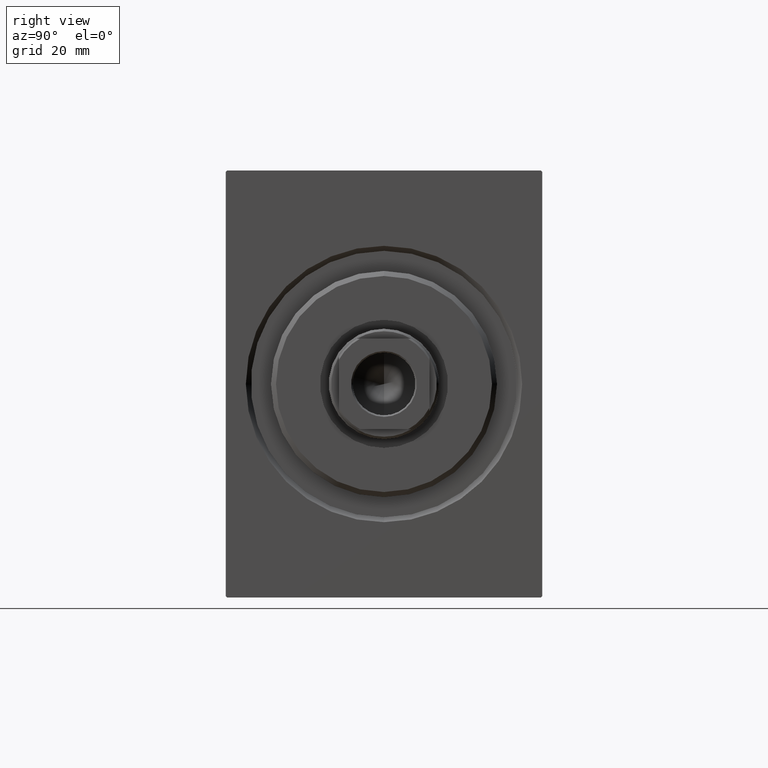
[diagram: clean part render]
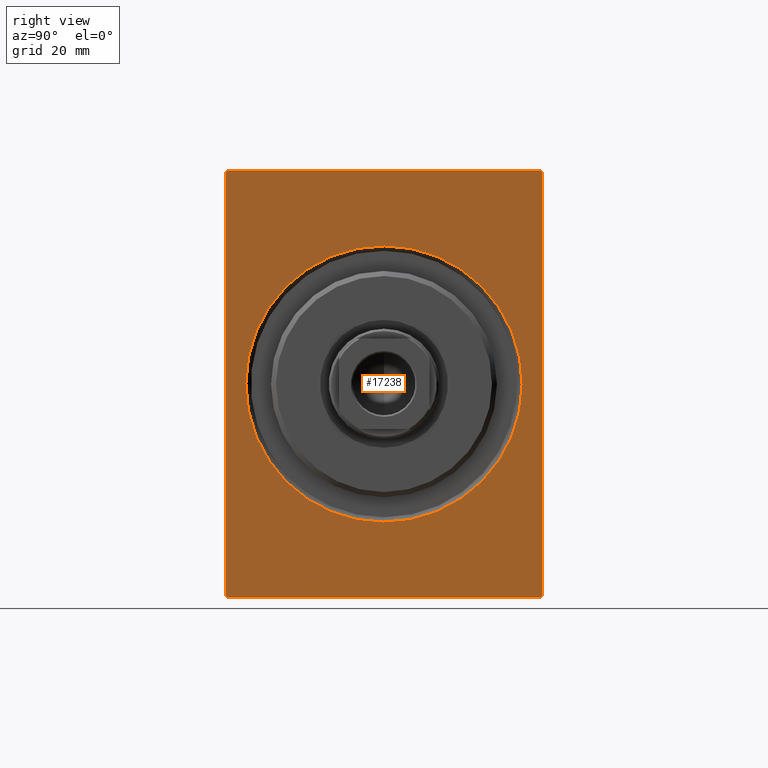
[diagram: same view with one face highlighted and labeled with its STEP entity id]
A machine part, right view. The second image highlights one B-rep face of the part: STEP entity #17238.
In plain terms, the highlighted planar face has unit normal (-1, 0, 0).
Its self-contained STEP definition (entity closure, byte-faithful):
#695 = DIRECTION ( 'NONE',  ( -0.000000000000000000, 0.7071067811865721087, -0.7071067811865230368 ) ) ;
#1017 = DIRECTION ( 'NONE',  ( 0.000000000000000000, 1.000000000000000000, 0.000000000000000000 ) ) ;
#1370 = ORIENTED_EDGE ( 'NONE', *, *, #28751, .T. ) ;
#1725 = CARTESIAN_POINT ( 'NONE',  ( 0.000000000000000000, 31.50000000000000000, 42.20000000000001705 ) ) ;
#2588 = PLANE ( 'NONE',  #25349 ) ;
#3373 = CARTESIAN_POINT ( 'NONE',  ( 0.000000000000000000, 31.50000000000000000, 42.50000000000000000 ) ) ;
#3903 = DIRECTION ( 'NONE',  ( 1.000000000000000000, 0.000000000000000000, 0.000000000000000000 ) ) ;
#4229 = ORIENTED_EDGE ( 'NONE', *, *, #19494, .T. ) ;
#4421 = VECTOR ( 'NONE', #695, 1000.000000000000000 ) ;
#5105 = CARTESIAN_POINT ( 'NONE',  ( 0.000000000000000000, -31.49999999999999289, 42.19999999999996732 ) ) ;
#5114 = VERTEX_POINT ( 'NONE', #41212 ) ;
#5214 = ORIENTED_EDGE ( 'NONE', *, *, #11338, .F. ) ;
#5714 = EDGE_CURVE ( 'NONE', #5114, #38886, #6514, .T. ) ;
#6102 = ORIENTED_EDGE ( 'NONE', *, *, #34713, .F. ) ;
#6514 = LINE ( 'NONE', #12383, #22422 ) ;
#8913 = ORIENTED_EDGE ( 'NONE', *, *, #13790, .T. ) ;
#9559 = DIRECTION ( 'NONE',  ( 0.000000000000000000, -0.7071067811865393571, -0.7071067811865556774 ) ) ;
#9749 = VERTEX_POINT ( 'NONE', #20751 ) ;
#10773 = CIRCLE ( 'NONE', #35030, 27.49999999999999645 ) ;
#10778 = CARTESIAN_POINT ( 'NONE',  ( 0.000000000000000000, -31.49999999999999289, -42.50000000000000711 ) ) ;
#11083 = CARTESIAN_POINT ( 'NONE',  ( 0.000000000000000000, -31.19999999999998508, -42.50000000000000711 ) ) ;
#11338 = EDGE_CURVE ( 'NONE', #9749, #19735, #41498, .T. ) ;
#11408 = CARTESIAN_POINT ( 'NONE',  ( 0.000000000000000000, -31.19999999999997797, 42.49999999999998579 ) ) ;
#11775 = DIRECTION ( 'NONE',  ( 0.000000000000000000, -1.632680918566406300E-16, 1.000000000000000000 ) ) ;
#11973 = DIRECTION ( 'NONE',  ( 0.000000000000000000, 0.000000000000000000, -1.000000000000000000 ) ) ;
#12092 = CARTESIAN_POINT ( 'NONE',  ( 0.000000000000000000, -31.19999999999998508, -42.50000000000000711 ) ) ;
#12359 = ORIENTED_EDGE ( 'NONE', *, *, #19738, .T. ) ;
#12383 = CARTESIAN_POINT ( 'NONE',  ( 0.000000000000000000, 31.50000000000001421, -42.20000000000000284 ) ) ;
#13790 = EDGE_CURVE ( 'NONE', #24588, #20873, #30805, .T. ) ;
#14931 = ORIENTED_EDGE ( 'NONE', *, *, #16509, .F. ) ;
#15092 = EDGE_CURVE ( 'NONE', #5114, #37617, #28929, .T. ) ;
#16509 = EDGE_CURVE ( 'NONE', #30589, #38886, #34429, .T. ) ;
#17238 = ADVANCED_FACE ( 'NONE', ( #18843, #32307 ), #2588, .F. ) ;
#18344 = DIRECTION ( 'NONE',  ( -0.000000000000000000, 0.7071067811865393571, 0.7071067811865556774 ) ) ;
#18354 = VECTOR ( 'NONE', #11775, 1000.000000000000000 ) ;
#18382 = VECTOR ( 'NONE', #1017, 1000.000000000000000 ) ;
#18843 = FACE_BOUND ( 'NONE', #31903, .T. ) ;
#19318 = EDGE_LOOP ( 'NONE', ( #6102, #1370, #40244, #29298, #14931, #4229, #5214, #12359 ) ) ;
#19438 = CARTESIAN_POINT ( 'NONE',  ( 0.000000000000000000, 31.19999999999999218, 42.50000000000000000 ) ) ;
#19494 = EDGE_CURVE ( 'NONE', #30589, #19735, #42492, .T. ) ;
#19735 = VERTEX_POINT ( 'NONE', #38095 ) ;
#19738 = EDGE_CURVE ( 'NONE', #9749, #31254, #34831, .T. ) ;
#20505 = VECTOR ( 'NONE', #22899, 1000.000000000000000 ) ;
#20515 = ORIENTED_EDGE ( 'NONE', *, *, #35002, .T. ) ;
#20751 = CARTESIAN_POINT ( 'NONE',  ( 0.000000000000000000, -31.49999999999999289, 42.19999999999996732 ) ) ;
#20873 = VERTEX_POINT ( 'NONE', #36453 ) ;
#21436 = CARTESIAN_POINT ( 'NONE',  ( 0.000000000000000000, 3.367778697655221307E-15, -27.49999999999999645 ) ) ;
#21728 = CARTESIAN_POINT ( 'NONE',  ( 0.000000000000000000, -31.49999999999999289, 42.49999999999998579 ) ) ;
#22418 = VECTOR ( 'NONE', #24977, 1000.000000000000000 ) ;
#22422 = VECTOR ( 'NONE', #9559, 1000.000000000000000 ) ;
#22899 = DIRECTION ( 'NONE',  ( 0.000000000000000000, -1.000000000000000000, -2.202823461557850341E-16 ) ) ;
#23268 = LINE ( 'NONE', #30427, #4421 ) ;
#23432 = DIRECTION ( 'NONE',  ( 0.000000000000000000, 0.000000000000000000, -1.000000000000000000 ) ) ;
#24588 = VERTEX_POINT ( 'NONE', #21436 ) ;
#24977 = DIRECTION ( 'NONE',  ( 0.000000000000000000, 0.000000000000000000, -1.000000000000000000 ) ) ;
#25349 = AXIS2_PLACEMENT_3D ( 'NONE', #38170, #34906, #28398 ) ;
#26120 = CARTESIAN_POINT ( 'NONE',  ( 0.000000000000000000, 31.20000000000001350, -42.50000000000000711 ) ) ;
#28398 = DIRECTION ( 'NONE',  ( 0.000000000000000000, 0.000000000000000000, -1.000000000000000000 ) ) ;
#28751 = EDGE_CURVE ( 'NONE', #32219, #37617, #23268, .T. ) ;
#28929 = LINE ( 'NONE', #29138, #18354 ) ;
#29138 = CARTESIAN_POINT ( 'NONE',  ( 0.000000000000000000, 31.50000000000001421, -42.50000000000000711 ) ) ;
#29298 = ORIENTED_EDGE ( 'NONE', *, *, #5714, .T. ) ;
#29454 = DIRECTION ( 'NONE',  ( -0.000000000000000000, -0.7071067811865556774, 0.7071067811865393571 ) ) ;
#30427 = CARTESIAN_POINT ( 'NONE',  ( 0.000000000000000000, 31.19999999999999218, 42.50000000000000000 ) ) ;
#30589 = VERTEX_POINT ( 'NONE', #11083 ) ;
#30805 = CIRCLE ( 'NONE', #37031, 27.49999999999999645 ) ;
#30956 = VECTOR ( 'NONE', #18344, 1000.000000000000114 ) ;
#31254 = VERTEX_POINT ( 'NONE', #11408 ) ;
#31736 = CARTESIAN_POINT ( 'NONE',  ( 0.000000000000000000, 0.000000000000000000, 0.000000000000000000 ) ) ;
#31903 = EDGE_LOOP ( 'NONE', ( #20515, #8913 ) ) ;
#32219 = VERTEX_POINT ( 'NONE', #19438 ) ;
#32307 = FACE_OUTER_BOUND ( 'NONE', #19318, .T. ) ;
#33845 = CARTESIAN_POINT ( 'NONE',  ( 0.000000000000000000, 0.000000000000000000, 0.000000000000000000 ) ) ;
#34429 = LINE ( 'NONE', #10778, #18382 ) ;
#34713 = EDGE_CURVE ( 'NONE', #32219, #31254, #42025, .T. ) ;
#34831 = LINE ( 'NONE', #5105, #30956 ) ;
#34906 = DIRECTION ( 'NONE',  ( 1.000000000000000000, 0.000000000000000000, 0.000000000000000000 ) ) ;
#35002 = EDGE_CURVE ( 'NONE', #20873, #24588, #10773, .T. ) ;
#35030 = AXIS2_PLACEMENT_3D ( 'NONE', #33845, #3903, #23432 ) ;
#35209 = DIRECTION ( 'NONE',  ( 1.000000000000000000, 0.000000000000000000, 0.000000000000000000 ) ) ;
#36453 = CARTESIAN_POINT ( 'NONE',  ( 0.000000000000000000, 0.000000000000000000, 27.49999999999999645 ) ) ;
#37031 = AXIS2_PLACEMENT_3D ( 'NONE', #31736, #35209, #11973 ) ;
#37617 = VERTEX_POINT ( 'NONE', #1725 ) ;
#37863 = VECTOR ( 'NONE', #29454, 1000.000000000000000 ) ;
#38095 = CARTESIAN_POINT ( 'NONE',  ( 0.000000000000000000, -31.49999999999999289, -42.20000000000000995 ) ) ;
#38170 = CARTESIAN_POINT ( 'NONE',  ( 0.000000000000000000, 0.000000000000000000, 0.000000000000000000 ) ) ;
#38886 = VERTEX_POINT ( 'NONE', #26120 ) ;
#40244 = ORIENTED_EDGE ( 'NONE', *, *, #15092, .F. ) ;
#41212 = CARTESIAN_POINT ( 'NONE',  ( 0.000000000000000000, 31.50000000000001421, -42.20000000000000284 ) ) ;
#41498 = LINE ( 'NONE', #21728, #22418 ) ;
#42025 = LINE ( 'NONE', #3373, #20505 ) ;
#42492 = LINE ( 'NONE', #12092, #37863 ) ;